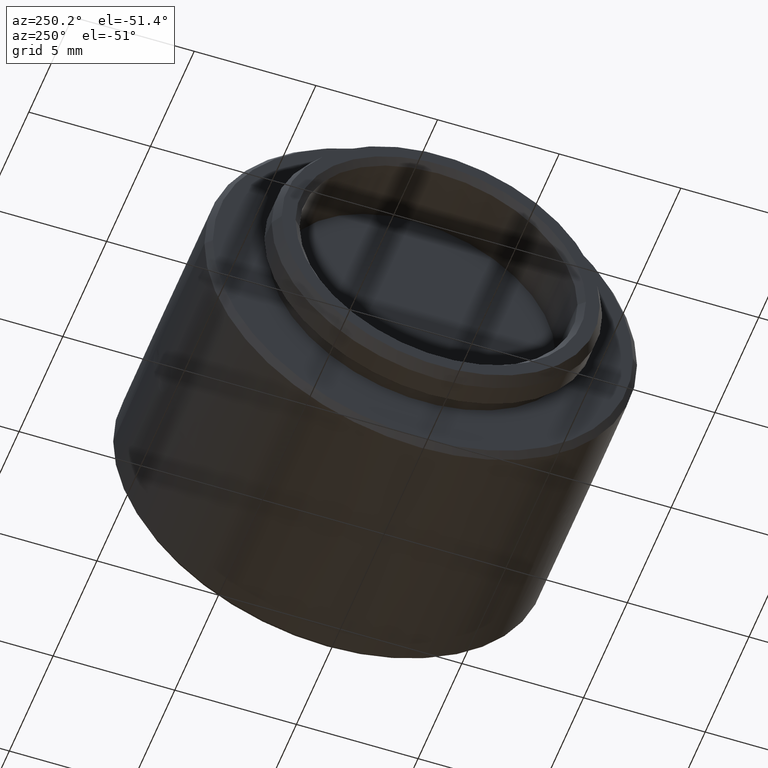
[diagram: clean part render]
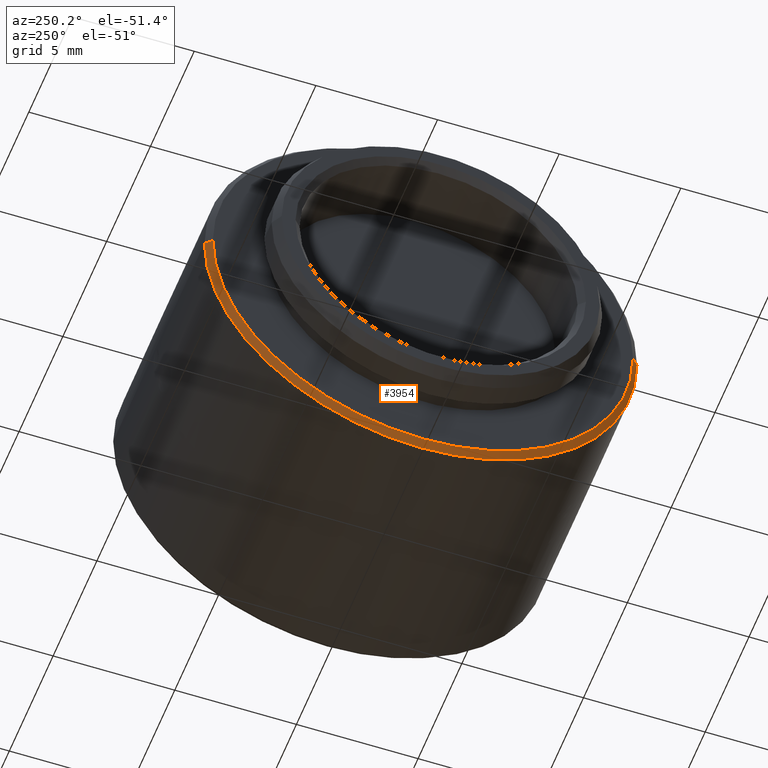
[diagram: same view with one face highlighted and labeled with its STEP entity id]
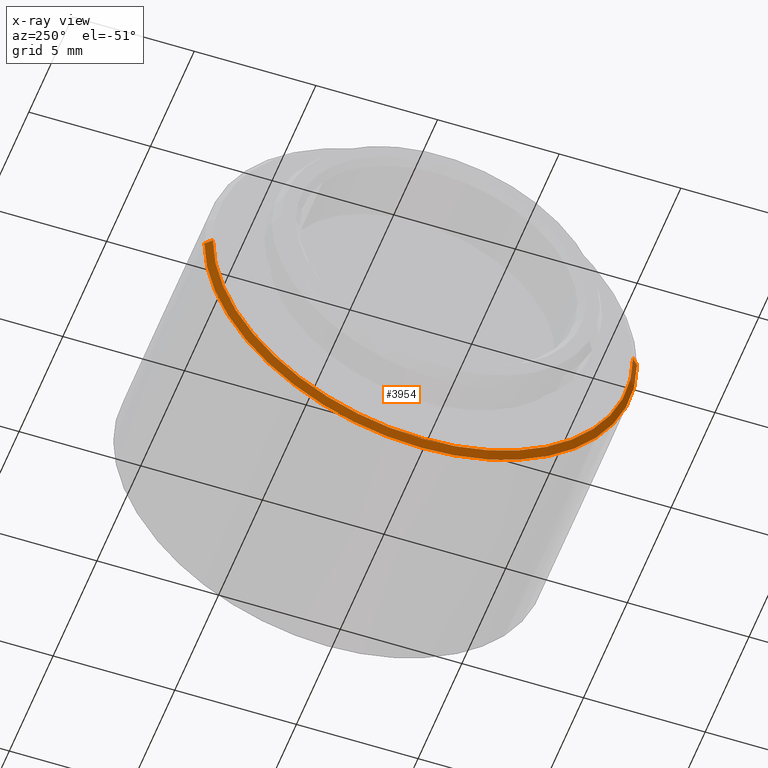
[diagram: x-ray of the same camera — body ghosted, the highlighted face saturated]
A machine part, auxiliary view. The second image highlights one B-rep face of the part: STEP entity #3954.
The next image is the same camera in x-ray: the body ghosted, the highlighted face saturated — about 0% of this face is hidden behind the body in this view.
In plain terms, the highlighted conical surface has half-angle 45 deg.
Its self-contained STEP definition (entity closure, byte-faithful):
#151 = CARTESIAN_POINT ( 'NONE',  ( -0.1649999999999999500, -1.168817312715633700E-017, 0.0000000000000000000 ) ) ;
#189 = CARTESIAN_POINT ( 'NONE',  ( -0.1650000000000000100, -1.168817312715636800E-017, 0.0000000000000000000 ) ) ;
#297 = CARTESIAN_POINT ( 'NONE',  ( -0.1650000000000000600, 0.3499999999999999800, 0.0000000000000000000 ) ) ;
#362 = ORIENTED_EDGE ( 'NONE', *, *, #4104, .F. ) ;
#481 = DIRECTION ( 'NONE',  ( 3.013067640070880400E-016, -1.000000000000000000, 0.0000000000000000000 ) ) ;
#569 = AXIS2_PLACEMENT_3D ( 'NONE', #9707, #5061, #481 ) ;
#575 = VECTOR ( 'NONE', #8171, 39.37007874015748100 ) ;
#932 = DIRECTION ( 'NONE',  ( 2.926979993211710600E-016, -1.000000000000000000, 0.0000000000000000000 ) ) ;
#1331 = CONICAL_SURFACE ( 'NONE', #5898, 0.3499999999999999800, 0.7853981633974517200 ) ;
#1396 = VERTEX_POINT ( 'NONE', #3601 ) ;
#1811 = DIRECTION ( 'NONE',  ( 1.000000000000000000, 3.361775527071160900E-016, -0.0000000000000000000 ) ) ;
#2382 = VERTEX_POINT ( 'NONE', #7199 ) ;
#2795 = CARTESIAN_POINT ( 'NONE',  ( -0.1650000000000001200, 0.3499999999999999800, 0.0000000000000000000 ) ) ;
#2879 = CIRCLE ( 'NONE', #569, 0.3399999999999998000 ) ;
#3123 = EDGE_CURVE ( 'NONE', #1396, #2382, #9703, .T. ) ;
#3245 = CARTESIAN_POINT ( 'NONE',  ( -0.1750000000000002400, 0.3399999999999998000, 0.0000000000000000000 ) ) ;
#3596 = FACE_OUTER_BOUND ( 'NONE', #7892, .T. ) ;
#3601 = CARTESIAN_POINT ( 'NONE',  ( -0.1750000000000000400, -0.3399999999999998000, 4.225031457058367200E-017 ) ) ;
#3954 = ADVANCED_FACE ( 'NONE', ( #3596 ), #1331, .T. ) ;
#4104 = EDGE_CURVE ( 'NONE', #8576, #1396, #2879, .T. ) ;
#4570 = EDGE_CURVE ( 'NONE', #2382, #4806, #5758, .T. ) ;
#4806 = VERTEX_POINT ( 'NONE', #297 ) ;
#5061 = DIRECTION ( 'NONE',  ( -1.000000000000000000, -3.361775527071165300E-016, 0.0000000000000000000 ) ) ;
#5518 = DIRECTION ( 'NONE',  ( 1.000000000000000000, 3.361775527071160900E-016, -0.0000000000000000000 ) ) ;
#5742 = DIRECTION ( 'NONE',  ( 0.7071067811865453500, -0.7071067811865496800, 8.659560562354962400E-017 ) ) ;
#5758 = CIRCLE ( 'NONE', #7793, 0.3499999999999999800 ) ;
#5898 = AXIS2_PLACEMENT_3D ( 'NONE', #189, #1811, #6378 ) ;
#6378 = DIRECTION ( 'NONE',  ( -2.926979993211710600E-016, 1.000000000000000000, 0.0000000000000000000 ) ) ;
#6971 = LINE ( 'NONE', #2795, #575 ) ;
#7199 = CARTESIAN_POINT ( 'NONE',  ( -0.1649999999999998400, -0.3499999999999999800, 4.286263797015736600E-017 ) ) ;
#7644 = VECTOR ( 'NONE', #5742, 39.37007874015748100 ) ;
#7770 = EDGE_CURVE ( 'NONE', #8576, #4806, #6971, .T. ) ;
#7793 = AXIS2_PLACEMENT_3D ( 'NONE', #151, #5518, #932 ) ;
#7892 = EDGE_LOOP ( 'NONE', ( #8247, #362, #8614, #8227 ) ) ;
#8171 = DIRECTION ( 'NONE',  ( 0.7071067811865449100, 0.7071067811865501300, 0.0000000000000000000 ) ) ;
#8227 = ORIENTED_EDGE ( 'NONE', *, *, #4570, .F. ) ;
#8247 = ORIENTED_EDGE ( 'NONE', *, *, #3123, .F. ) ;
#8576 = VERTEX_POINT ( 'NONE', #3245 ) ;
#8614 = ORIENTED_EDGE ( 'NONE', *, *, #7770, .T. ) ;
#8813 = CARTESIAN_POINT ( 'NONE',  ( -0.1649999999999999200, -0.3499999999999999800, 4.286263797015736000E-017 ) ) ;
#9703 = LINE ( 'NONE', #8813, #7644 ) ;
#9707 = CARTESIAN_POINT ( 'NONE',  ( -0.1750000000000001600, -1.504994865422755800E-017, 0.0000000000000000000 ) ) ;